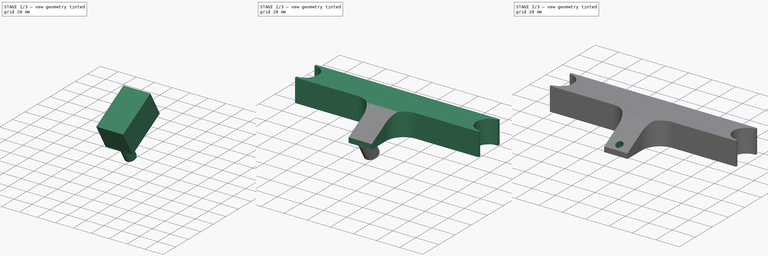
[diagram: build sequence overview — one tinted view per stage of 3, left to right]
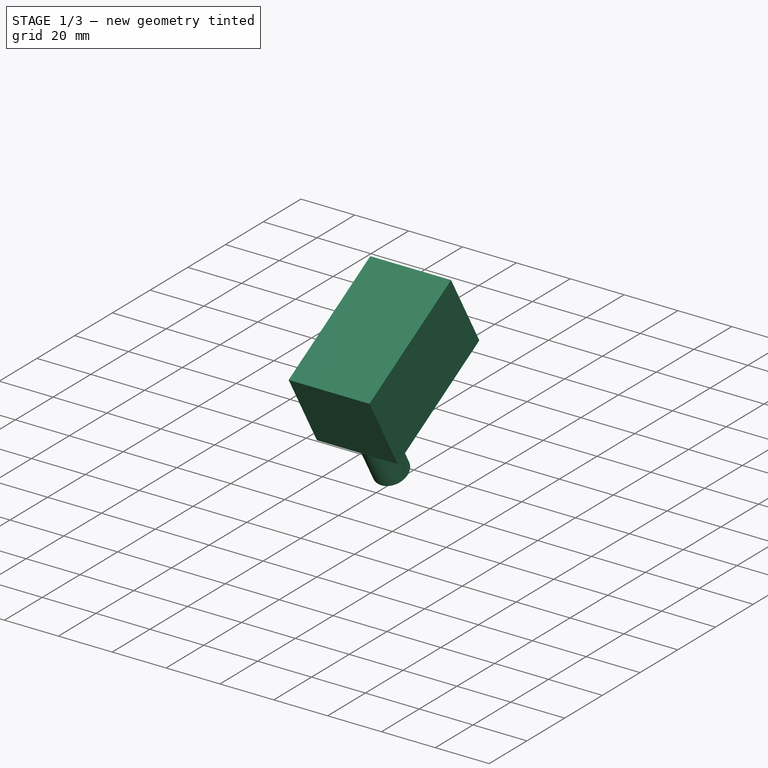
[diagram: stage 1 of 3 — iso view after this stage's code; geometry added in this stage tinted green]
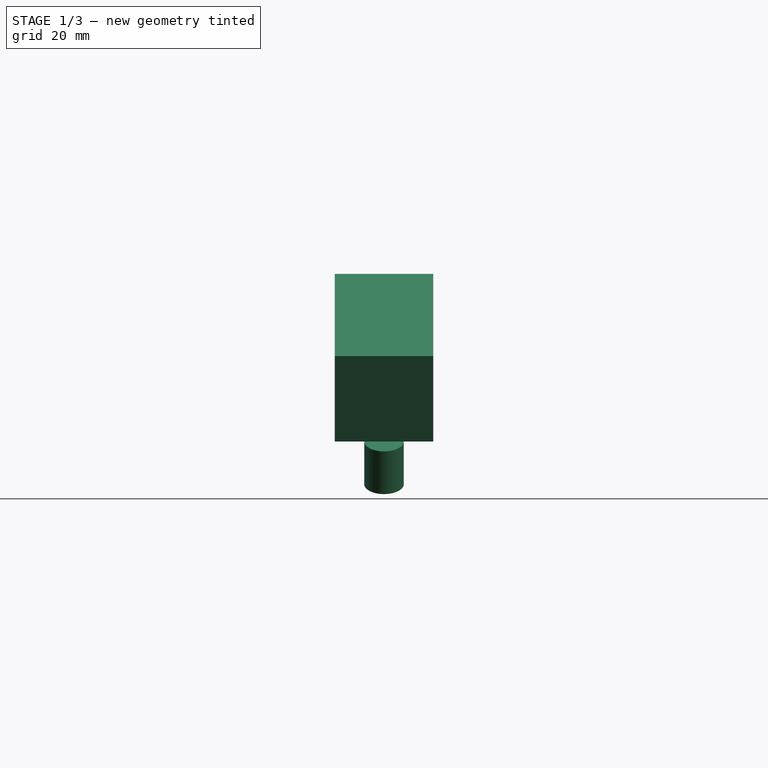
[diagram: stage 1 of 3 — front view after this stage's code; geometry added in this stage tinted green]
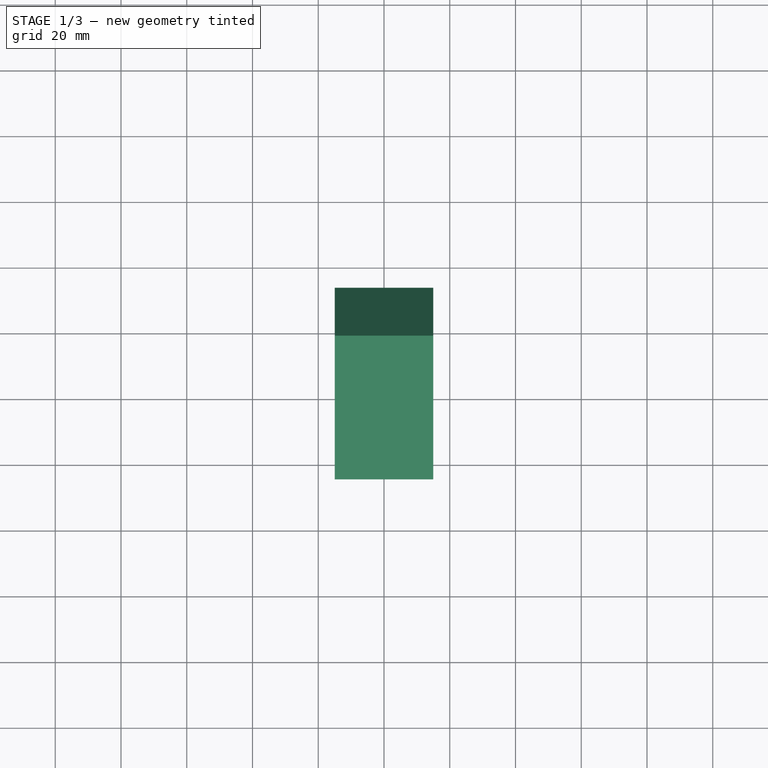
[diagram: stage 1 of 3 — top view after this stage's code; geometry added in this stage tinted green]
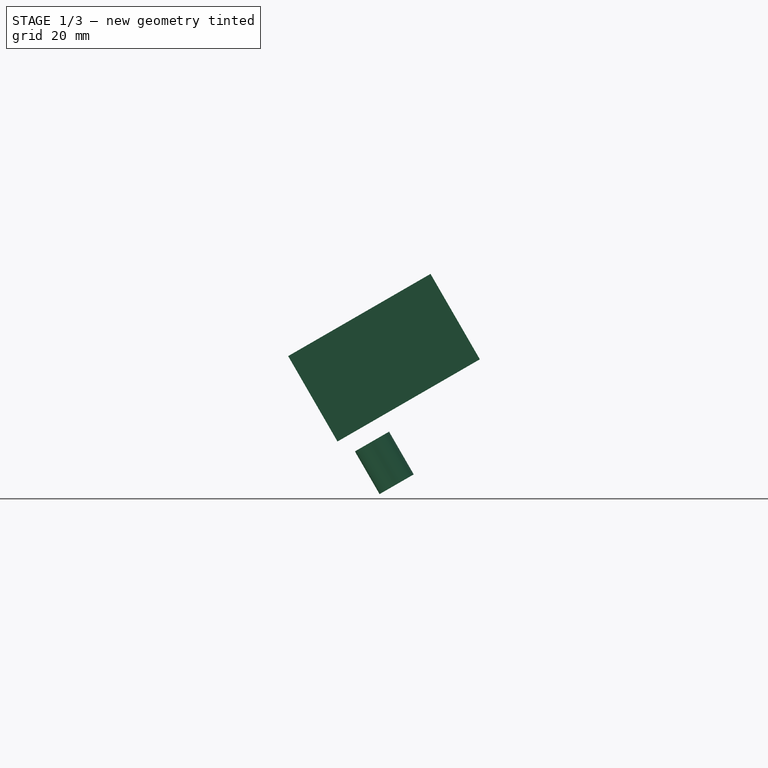
[diagram: stage 1 of 3 — right view after this stage's code; geometry added in this stage tinted green]
FCSTD DOCUMENT  (FreeCAD 0.14R2935 (Git))
Label: xtraacyclemudguardholder
License: CC-BY 3.0
LicenseURL: http://creativecommons.org/licenses/by/3.0/
objects: Sketcher::SketchObject×2, Part::Cut×2, PartDesign::Pad×1, Part::Box×1, PartDesign::Pocket×1, Part::Cylinder×1
note: 10 computed .brp shape members not serialized (recipe doc carries the construction recipe); baked Part::Feature solids carry a one-line shape summary decoded from their .brp

FEATURE [Part::Box] Box
  Height = 30
  Length = 30
  Placement = pos=(-15,-50,2) rot=(1,0,0;0.523597rad)
  Width = 50
FEATURE [Part::Cylinder] Cylinder
  Angle = 360
  Height = 15
  Placement = pos=(0,-32,-11) rot=(1,0,0;0.523599rad)
  Radius = 6
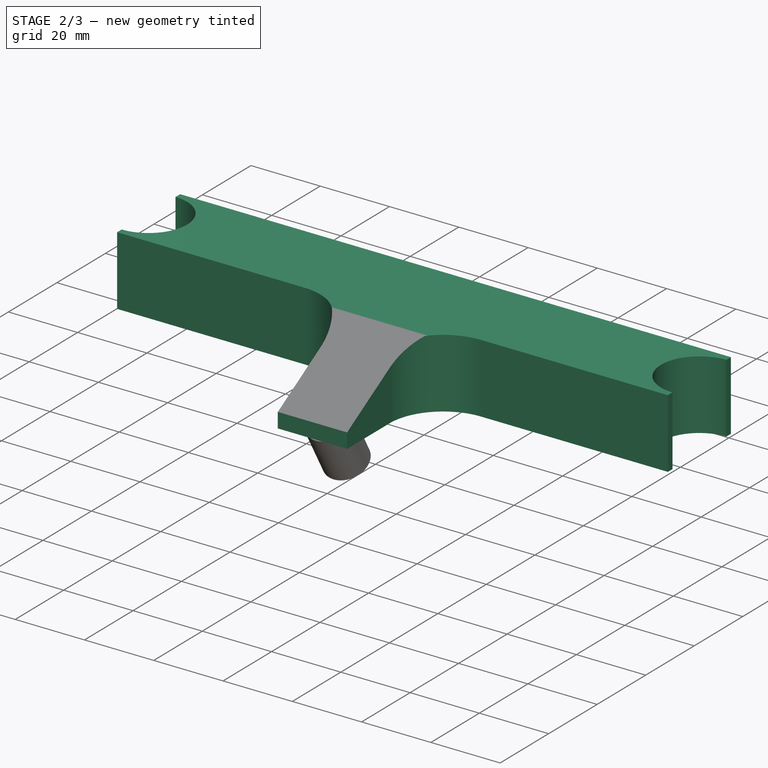
[diagram: stage 2 of 3 — iso view after this stage's code; geometry added in this stage tinted green]
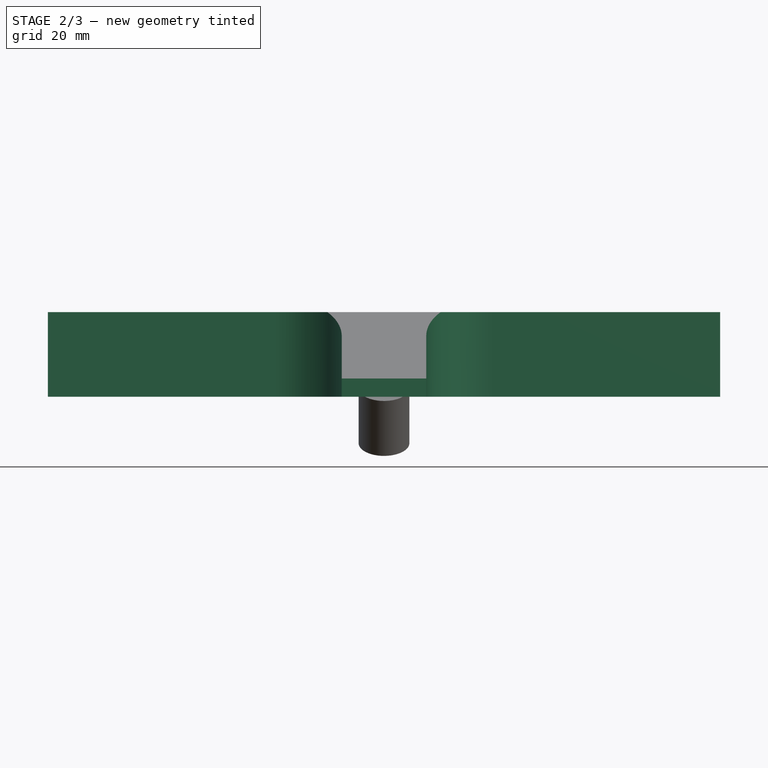
[diagram: stage 2 of 3 — front view after this stage's code; geometry added in this stage tinted green]
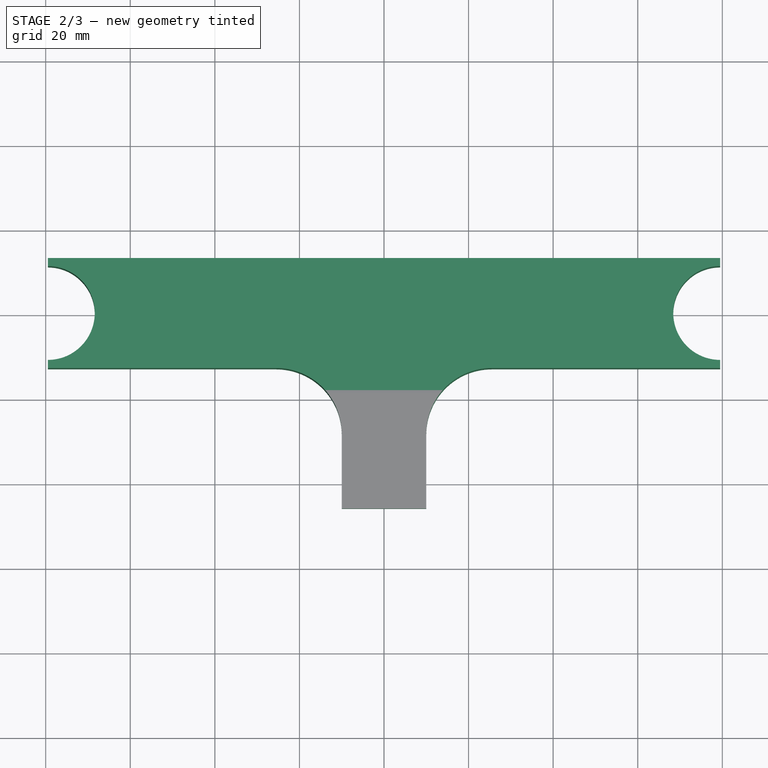
[diagram: stage 2 of 3 — top view after this stage's code; geometry added in this stage tinted green]
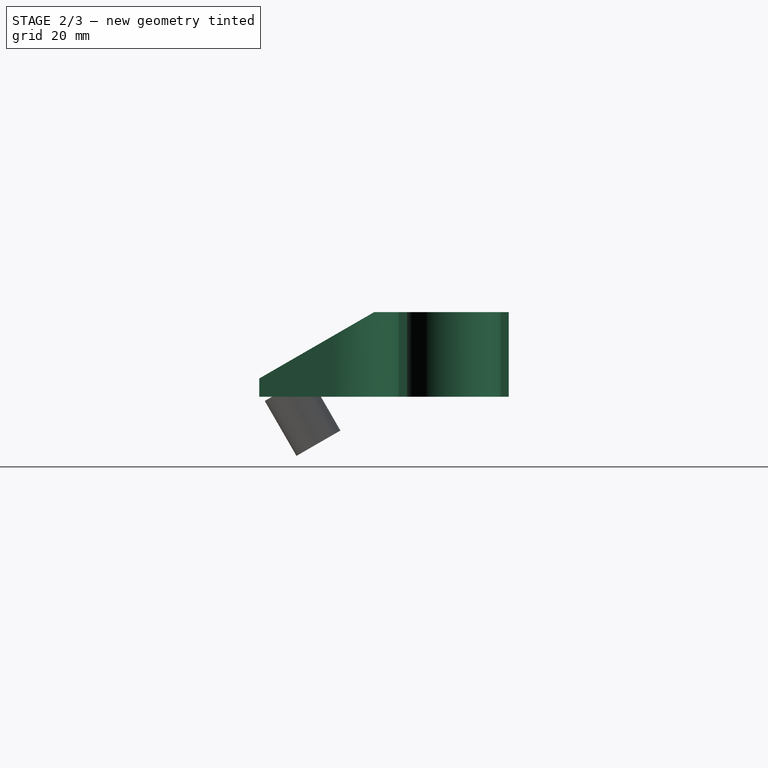
[diagram: stage 2 of 3 — right view after this stage's code; geometry added in this stage tinted green]
FEATURE [Sketcher::SketchObject] Sketch
  sketch-geometry (14):
    g0: LineSegment StartX=-79.5 StartY=13 StartZ=0 EndX=79.5 EndY=13 EndZ=0
    g1: LineSegment StartX=-79.5 StartY=-13 StartZ=0 EndX=-25.5184 EndY=-13 EndZ=0
    g2: LineSegment StartX=-79.5 StartY=-13 StartZ=0 EndX=-79.5 EndY=-11.1 EndZ=0
    g3: LineSegment StartX=-79.5 StartY=13 StartZ=0 EndX=-79.5 EndY=11.1 EndZ=0
    g4: LineSegment StartX=79.5 StartY=13 StartZ=0 EndX=79.5 EndY=11.1 EndZ=0
    g5: LineSegment StartX=79.5 StartY=-13 StartZ=0 EndX=79.5 EndY=-11.1 EndZ=0
    g6: ArcOfCircle CenterX=-79.5 CenterY=0 CenterZ=0 NormalX=0 NormalY=0 NormalZ=1 Radius=11.1 StartAngle=4.71239 EndAngle=7.85398
    g7: ArcOfCircle CenterX=79.5 CenterY=0 CenterZ=0 NormalX=0 NormalY=0 NormalZ=1 Radius=11.1 StartAngle=1.5708 EndAngle=4.71239
    g8: LineSegment StartX=-10 StartY=-46 StartZ=0 EndX=10 EndY=-46 EndZ=0
    g9: LineSegment StartX=10 StartY=-46 StartZ=0 EndX=10 EndY=-28.5184 EndZ=0
    g10: LineSegment StartX=-10 StartY=-28.5184 StartZ=0 EndX=-10 EndY=-46 EndZ=0
    g11: LineSegment StartX=25.5184 StartY=-13 StartZ=0 EndX=79.5 EndY=-13 EndZ=0
    g12: ArcOfCircle CenterX=-25.5184 CenterY=-28.5184 CenterZ=0 NormalX=0 NormalY=0 NormalZ=1 Radius=15.5184 StartAngle=0 EndAngle=1.5708
    g13: ArcOfCircle CenterX=25.5184 CenterY=-28.5184 CenterZ=0 NormalX=0 NormalY=0 NormalZ=1 Radius=15.5184 StartAngle=1.5708 EndAngle=3.14159
  constraints (40):
    c: Horizontal(g1)
    c: Coincident(g3,g0)
    c: Vertical(g4)
    c: PointOnObject(g6,g-1)
    c: Coincident(g6,g3)
    c: Coincident(g7,g4)
    c: Coincident(g7,g5)
    c: Radius(g7) = 11.1
    c: Perpendicular(g3,g0)
    c: Coincident(g2,g6)
    c: Perpendicular(g2,g1)
    c: Coincident(g1,g2)
    c: Perpendicular(g5,g1)
    c: Perpendicular(g0,g4)
    c: Coincident(g0,g4)
    c: DistanceY(g-1,g7) = 0
    c: Symmetric(g11,g0,g-1)
    c: Symmetric(g0,g0,g-2)
    c: Symmetric(g6,g7,g-2)
    c: Distance(g0,g0) = 159
    c: Coincident(g11,g5)
    c: Radius(g6) = 11.1
    c: Distance(g1,g0) = 26
    c: Coincident(g8,g9)
    c: Coincident(g10,g8)
    c: Horizontal(g8)
    c: Vertical(g9)
    c: Vertical(g10)
    c: DistanceY(g8) = -46
    c: DistanceX(g8,g8) = 20
    c: Tangent(g1,g11)
    c: Tangent(g1,g12)
    c: Tangent(g10,g12)
    c: Tangent(g9,g13)
    c: Tangent(g11,g13)
    c: Symmetric(g8,g8,g-2)
    c: Symmetric(g1,g11,g-2)
    c: DistanceY(g9,g11) = 15.5184
    c: DistanceX(g6,g7) = 159
    c: DistanceX(g1,g5) = 159
FEATURE [PartDesign::Pad] Pad
  Length = 20
  Length2 = 100
  Sketch = -> Sketch
  Type = 0
FEATURE [Part::Cut] Cut
  Base = -> Pad
  Tool = -> Box
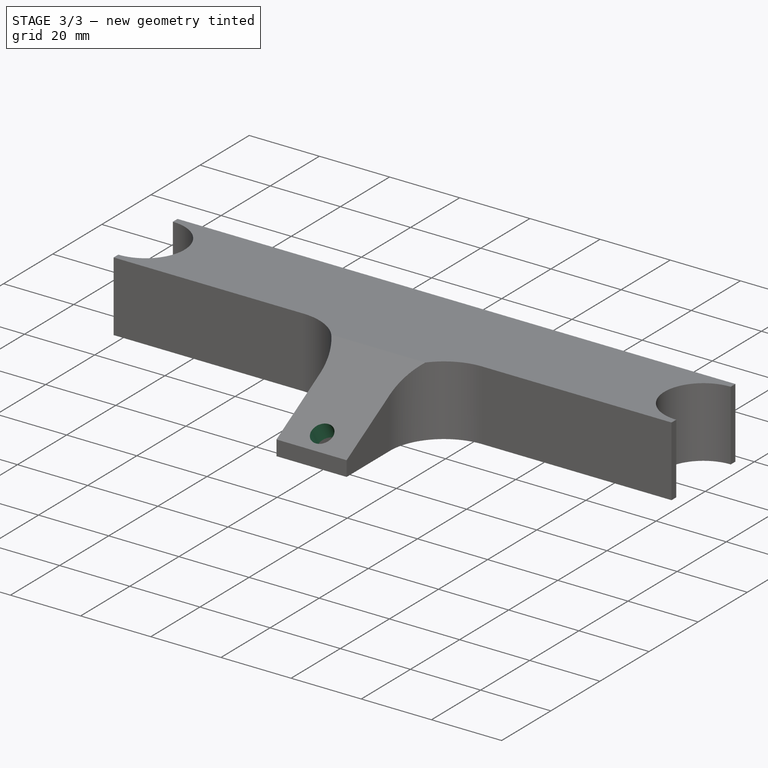
[diagram: stage 3 of 3 — iso view after this stage's code; geometry added in this stage tinted green]
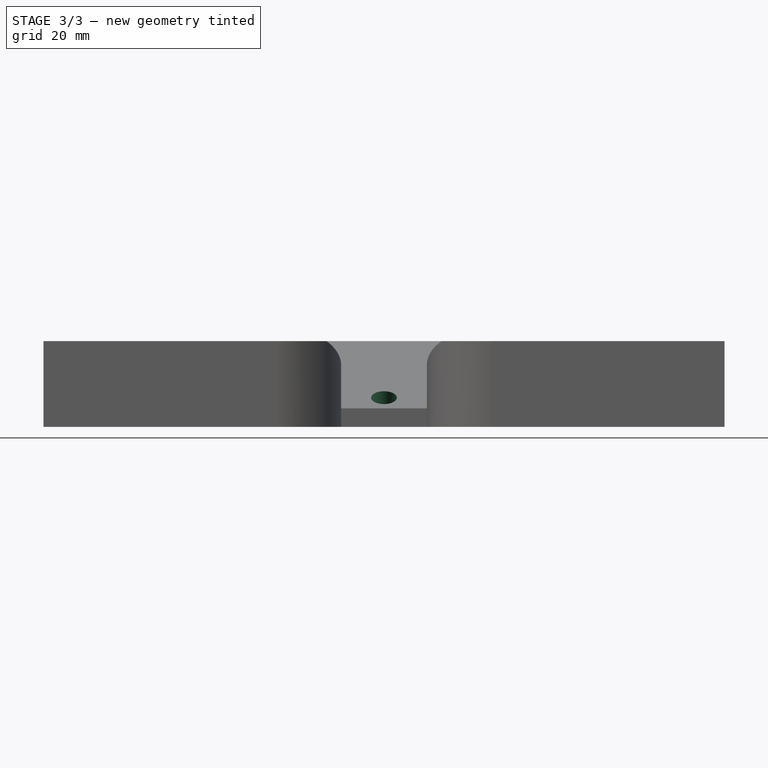
[diagram: stage 3 of 3 — front view after this stage's code; geometry added in this stage tinted green]
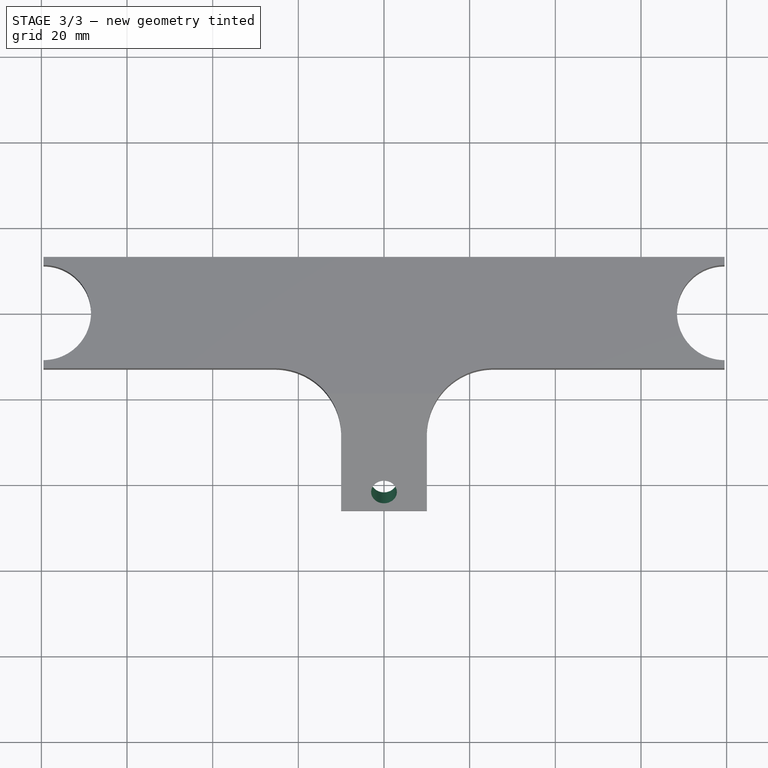
[diagram: stage 3 of 3 — top view after this stage's code; geometry added in this stage tinted green]
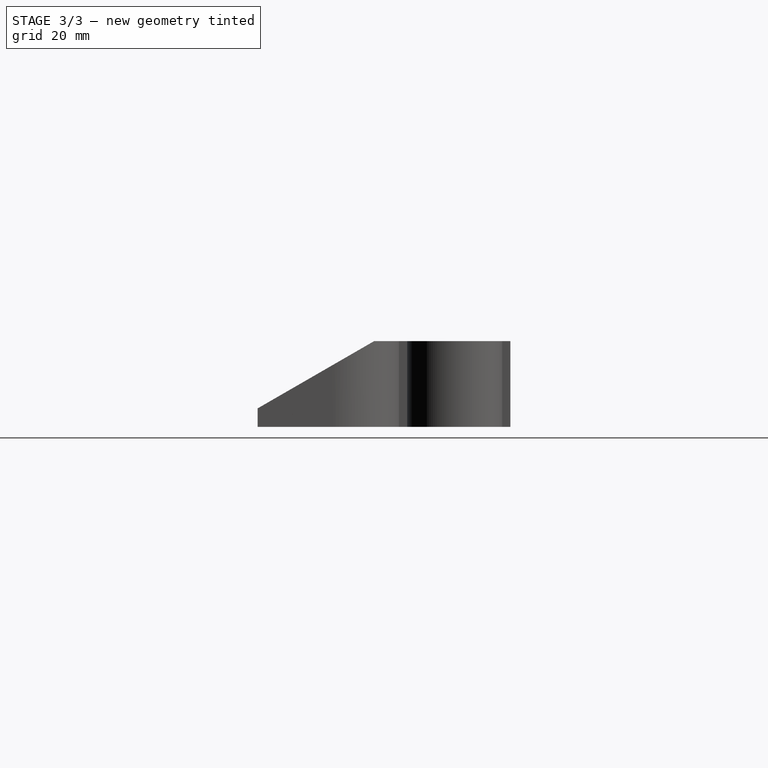
[diagram: stage 3 of 3 — right view after this stage's code; geometry added in this stage tinted green]
FEATURE [Sketcher::SketchObject] Sketch001
  ExternalGeometry = -> [Cut]
  Placement = pos=(0,-13.3659,23.1506) rot=(1,0,0;0.523597rad)
  Support = -> Cut [Face17]
  sketch-geometry (1):
    g0: Circle CenterX=0 CenterY=-32.6825 CenterZ=0 NormalX=0 NormalY=0 NormalZ=1 Radius=3
  constraints (3):
    c: PointOnObject(g0,g-2)
    c: Radius(g0) = 3
    c: Distance(g0,g-3) = 5
FEATURE [PartDesign::Pocket] Pocket
  Length = 5
  Sketch = -> Sketch001
  Type = 1
FEATURE [Part::Cut] Cut001
  Base = -> Pocket
  Tool = -> Cylinder
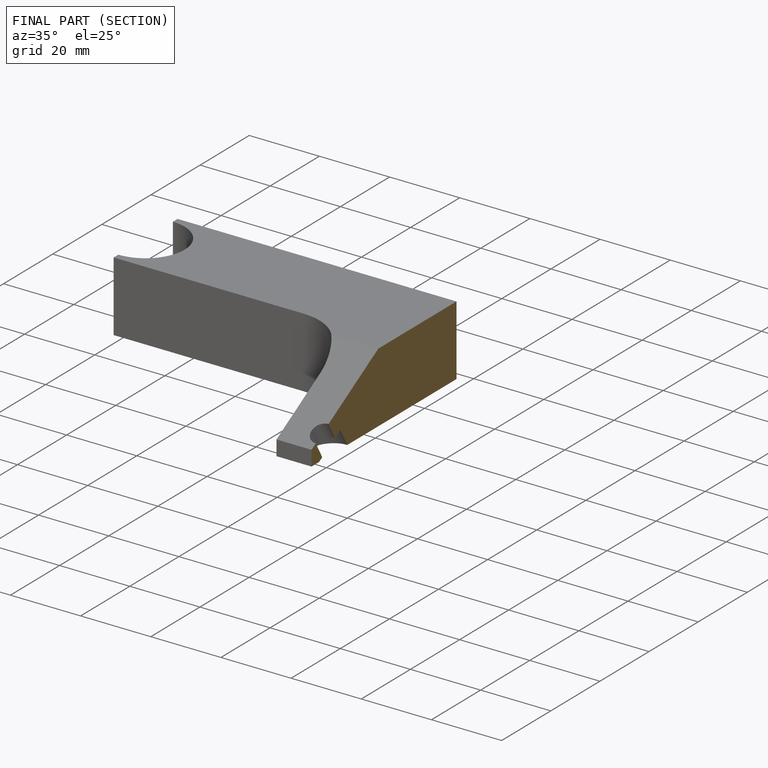
[diagram: finished part — half-section view (interior)]
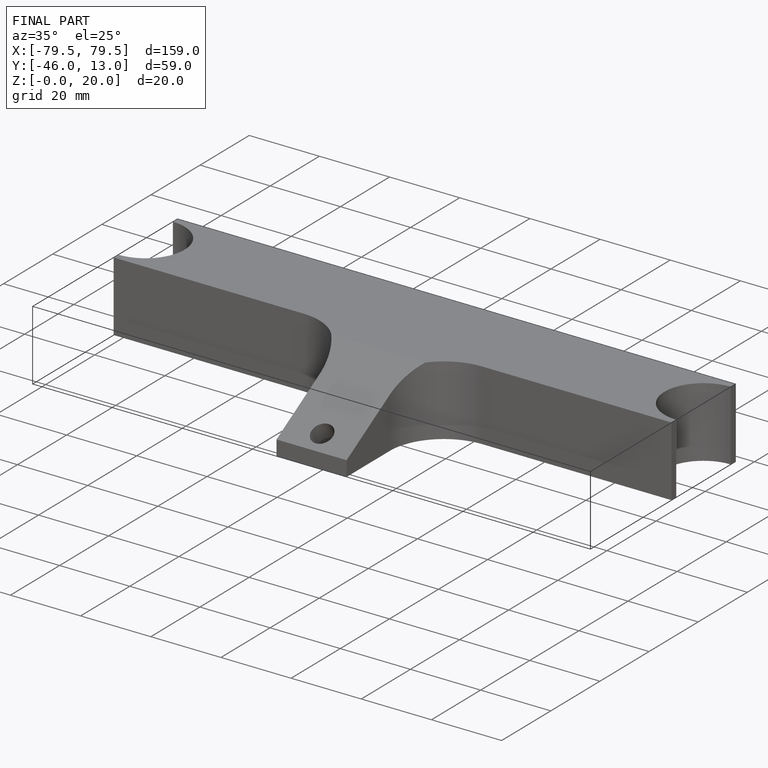
[diagram: finished part — iso view with bounding-box wireframe]
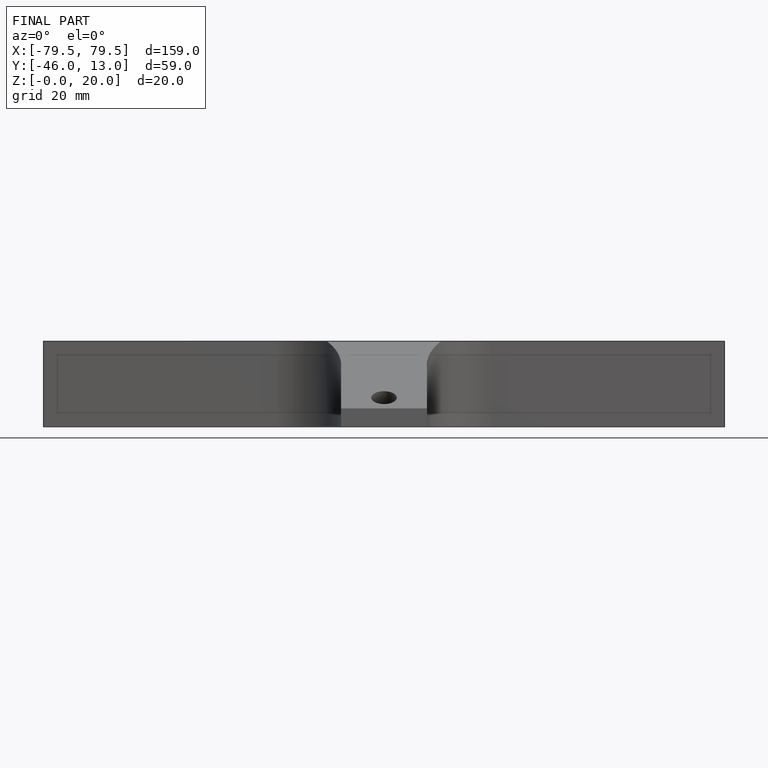
[diagram: finished part — front view with bounding-box wireframe]
